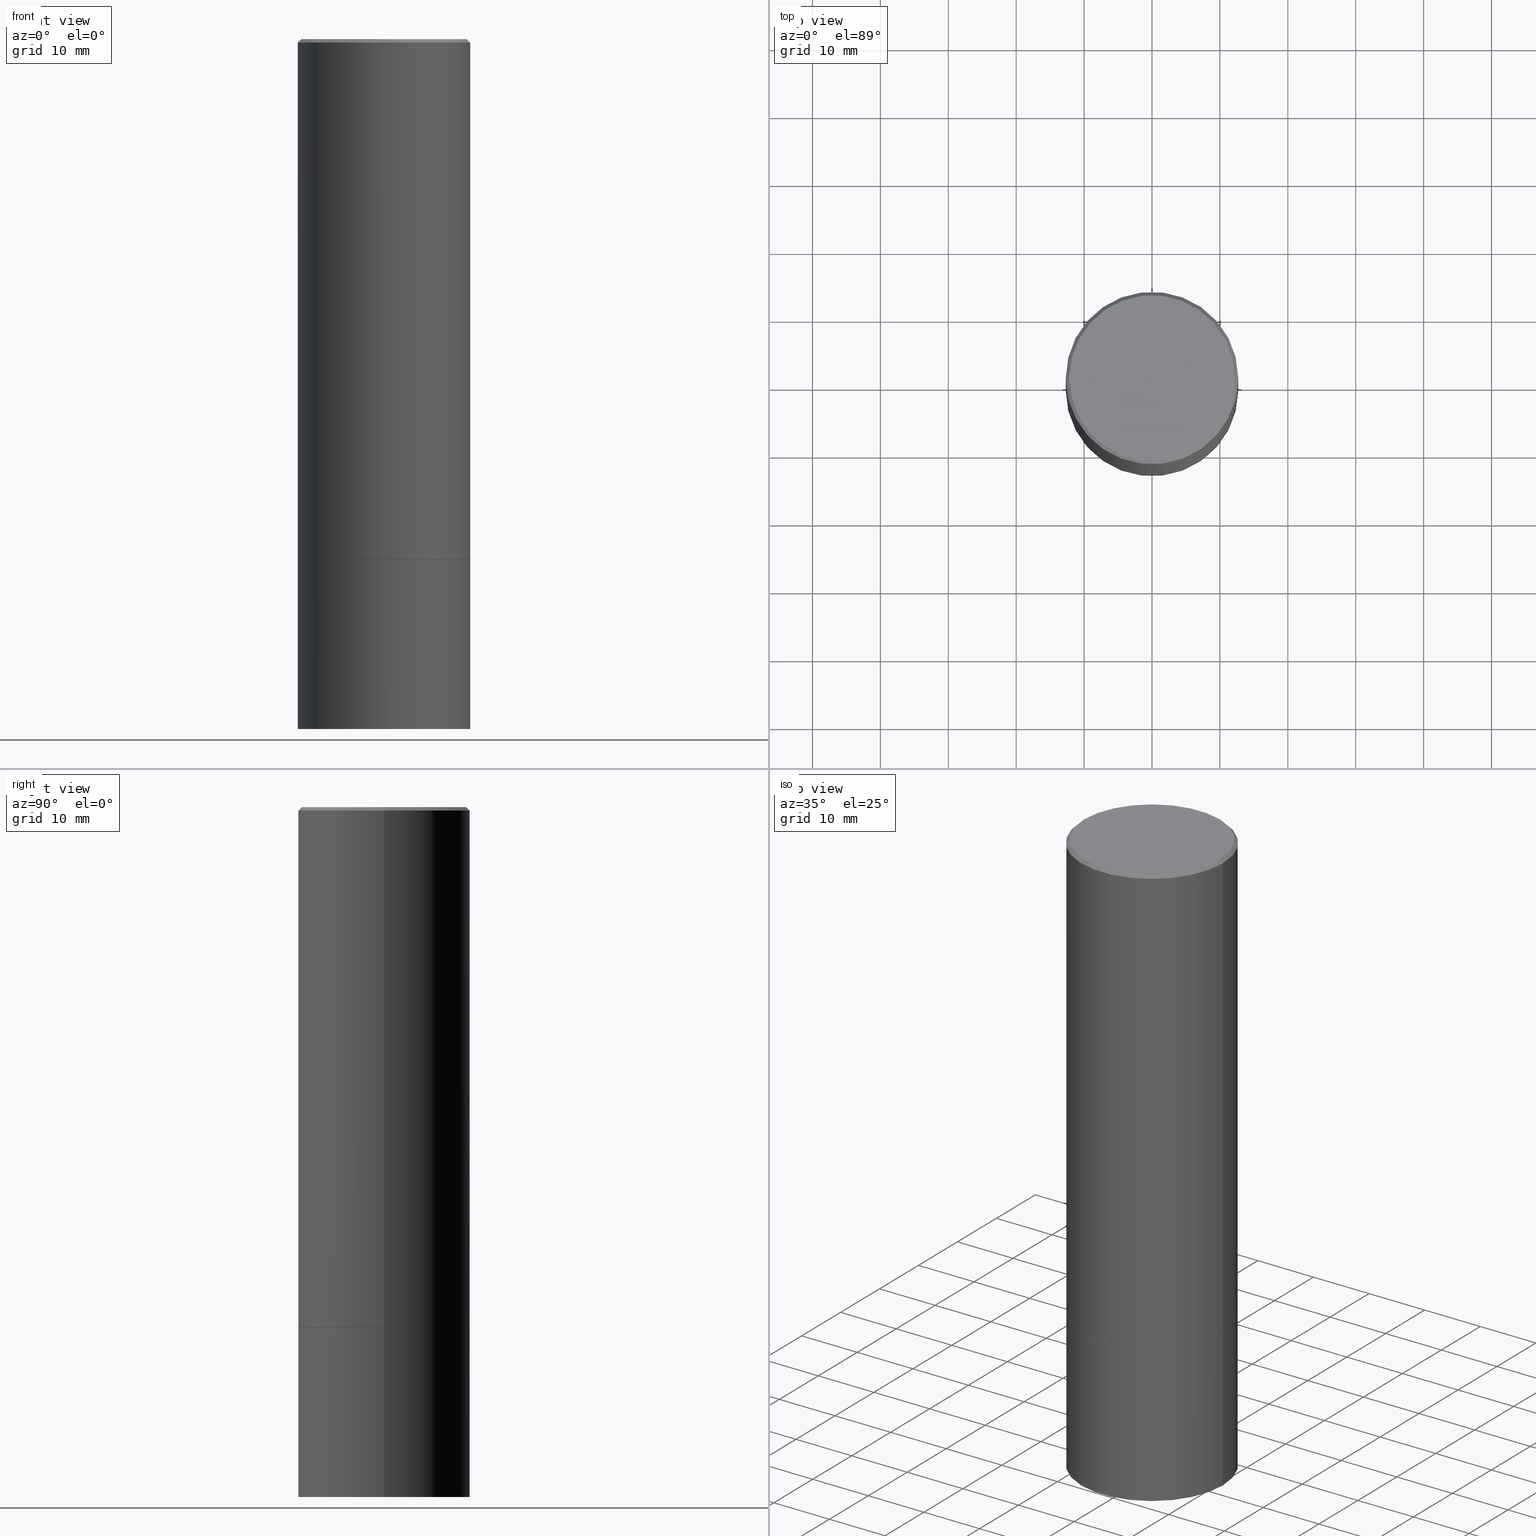
[diagram: canonical four-view strip — front | top / right | iso, engineering-drawing reading convention]
A machine part, canonical four-view strip (front | top / right | iso — engineering-drawing reading convention). The complete STEP part file that produces these views, byte-faithful:
ISO-10303-21;
HEADER;
FILE_DESCRIPTION (( 'STEP AP203' ),
    '1' );
FILE_NAME ('32670.STEP',
    '2022-04-27T15:46:49',
    ( '' ),
    ( '' ),
    'SwSTEP 2.0',
    'SolidWorks 2022',
    '' );
FILE_SCHEMA (( 'CONFIG_CONTROL_DESIGN' ));
ENDSEC;

DATA;
#1 = DIRECTION ( 'NONE',  ( -0.7071067811864267805, 7.493145998869918709E-15, 0.7071067811866682540 ) ) ;
#2 = APPROVAL_PERSON_ORGANIZATION ( #282, #192, #132 ) ;
#3 = EDGE_CURVE ( 'NONE', #346, #46, #5, .T. ) ;
#4 = CARTESIAN_POINT ( 'NONE',  ( 0.000000000000000000, 0.000000000000000000, 0.000000000000000000 ) ) ;
#5 = CIRCLE ( 'NONE', #216, 0.5000000000000000000 ) ;
#6 = FACE_OUTER_BOUND ( 'NONE', #355, .T. ) ;
#7 = FACE_OUTER_BOUND ( 'NONE', #214, .T. ) ;
#8 = FACE_OUTER_BOUND ( 'NONE', #257, .T. ) ;
#9 = ADVANCED_FACE ( 'NONE', ( #6 ), #153, .F. ) ;
#10 = AXIS2_PLACEMENT_3D ( 'NONE', #99, #33, #185 ) ;
#11 = FACE_OUTER_BOUND ( 'NONE', #82, .T. ) ;
#12 = DIRECTION ( 'NONE',  ( -2.445468806185136597E-29, 3.491481338843145583E-15, 1.000000000000000000 ) ) ;
#13 = APPLICATION_PROTOCOL_DEFINITION ( 'international standard', 'config_control_design', 1994, #195 ) ;
#14 = CC_DESIGN_APPROVAL ( #80, ( #276 ) ) ;
#15 = CC_DESIGN_PERSON_AND_ORGANIZATION_ASSIGNMENT ( #174, #199, ( #276 ) ) ;
#16 = SHAPE_DEFINITION_REPRESENTATION ( #170, #91 ) ;
#17 = DIRECTION ( 'NONE',  ( -0.7071067811865451302, 2.468850131082231817E-15, -0.7071067811865499042 ) ) ;
#18 = PRODUCT ( '32670', '32670', '', ( #130 ) ) ;
#19 = APPROVAL_STATUS ( 'not_yet_approved' ) ;
#20 = ORIENTED_EDGE ( 'NONE', *, *, #146, .T. ) ;
#21 = CARTESIAN_POINT ( 'NONE',  ( 7.374800278812518600E-29, -1.052926027354927709E-14, -3.015700000000000713 ) ) ;
#22 = LINE ( 'NONE', #172, #168 ) ;
#23 = VERTEX_POINT ( 'NONE', #57 ) ;
#24 = PERSON_AND_ORGANIZATION_ROLE ( 'design_supplier' ) ;
#25 = CC_DESIGN_SECURITY_CLASSIFICATION ( #283, ( #276 ) ) ;
#26 = DIRECTION ( 'NONE',  ( -2.445468806185136597E-29, 3.491481338843145583E-15, 1.000000000000000000 ) ) ;
#27 = DIRECTION ( 'NONE',  ( 2.438088387897960049E-29, -3.491481338843145188E-15, -1.000000000000000000 ) ) ;
#28 = FACE_OUTER_BOUND ( 'NONE', #88, .T. ) ;
#29 = DIRECTION ( 'NONE',  ( -0.9998476951563912696, 6.920964387254060733E-15, -0.01745240643727649296 ) ) ;
#30 = DIRECTION ( 'NONE',  ( 1.000000000000000000, -6.982962677686266711E-15, 0.000000000000000000 ) ) ;
#31 = DIRECTION ( 'NONE',  ( 1.000000000000000000, -6.982962677686265133E-15, 0.000000000000000000 ) ) ;
#32 = EDGE_CURVE ( 'NONE', #77, #46, #269, .T. ) ;
#33 = DIRECTION ( 'NONE',  ( 2.445468806185136597E-29, -3.491481338843145583E-15, -1.000000000000000000 ) ) ;
#34 = CARTESIAN_POINT ( 'NONE',  ( 4.890937612370302060E-31, -6.982962677686331052E-17, -0.02000000000000011491 ) ) ;
#35 = CARTESIAN_POINT ( 'NONE',  ( 7.374800278812518600E-29, -1.052926027354927709E-14, -3.015700000000000713 ) ) ;
#36 = EDGE_CURVE ( 'NONE', #165, #206, #84, .T. ) ;
#37 = APPROVAL_STATUS ( 'not_yet_approved' ) ;
#38 = CARTESIAN_POINT ( 'NONE',  ( 7.372354810006331876E-29, -1.052576879221043250E-14, -3.014700000000000379 ) ) ;
#39 = LOCAL_TIME ( 11, 46, 49.00000000000000000, #316 ) ;
#40 = APPROVAL_ROLE ( '' ) ;
#41 = AXIS2_PLACEMENT_3D ( 'NONE', #35, #373, #64 ) ;
#42 = EDGE_LOOP ( 'NONE', ( #249, #213, #20, #319 ) ) ;
#43 = EDGE_CURVE ( 'NONE', #374, #148, #267, .T. ) ;
#44 = CARTESIAN_POINT ( 'NONE',  ( 4.890937612370302060E-31, -6.982962677686331052E-17, -0.02000000000000011491 ) ) ;
#45 = APPLICATION_CONTEXT ( 'configuration controlled 3d designs of mechanical parts and assemblies' ) ;
#46 = VERTEX_POINT ( 'NONE', #147 ) ;
#47 = DIRECTION ( 'NONE',  ( 1.000000000000000000, -6.982962677686265922E-15, 4.876176775795935793E-29 ) ) ;
#48 = EDGE_LOOP ( 'NONE', ( #49, #52, #352 ) ) ;
#49 = ORIENTED_EDGE ( 'NONE', *, *, #32, .F. ) ;
#50 = ORIENTED_EDGE ( 'NONE', *, *, #102, .T. ) ;
#51 = ADVANCED_FACE ( 'NONE', ( #92 ), #238, .F. ) ;
#52 = ORIENTED_EDGE ( 'NONE', *, *, #369, .T. ) ;
#53 = AXIS2_PLACEMENT_3D ( 'NONE', #220, #337, #379 ) ;
#54 = CARTESIAN_POINT ( 'NONE',  ( 0.4999999999999996114, -3.500078625662626318E-15, -0.02000000000000011491 ) ) ;
#55 = CARTESIAN_POINT ( 'NONE',  ( 3.491481338843206719E-15, 0.4999999999999894529, -3.015700000000002046 ) ) ;
#56 = AXIS2_PLACEMENT_3D ( 'NONE', #236, #262, #359 ) ;
#57 = CARTESIAN_POINT ( 'NONE',  ( 0.5000000000000000000, -1.401725013105356586E-14, -3.014700000000000379 ) ) ;
#58 = DIRECTION ( 'NONE',  ( -2.445468806185136877E-29, 3.491481338843145188E-15, 1.000000000000000000 ) ) ;
#59 = CIRCLE ( 'NONE', #187, 0.5000000000000000000 ) ;
#60 = DIRECTION ( 'NONE',  ( -2.445468806185136597E-29, 3.491481338843145583E-15, 1.000000000000000000 ) ) ;
#61 = DIRECTION ( 'NONE',  ( 0.7071067811864267805, -2.468850131080992517E-15, 0.7071067811866682540 ) ) ;
#62 = CARTESIAN_POINT ( 'NONE',  ( 4.890937612370302060E-31, -6.982962677686331052E-17, -0.02000000000000011491 ) ) ;
#63 = LOCAL_TIME ( 11, 46, 49.00000000000000000, #128 ) ;
#64 = DIRECTION ( 'NONE',  ( 1.000000000000000000, -6.982962677686265133E-15, 0.000000000000000000 ) ) ;
#65 = EDGE_CURVE ( 'NONE', #288, #200, #179, .T. ) ;
#66 =( CONVERSION_BASED_UNIT ( 'INCH', #281 ) LENGTH_UNIT ( ) NAMED_UNIT ( #164 ) );
#67 = LINE ( 'NONE', #277, #162 ) ;
#68 =( LENGTH_UNIT ( ) NAMED_UNIT ( * ) SI_UNIT ( $, .METRE. ) );
#69 = LINE ( 'NONE', #219, #196 ) ;
#70 = PERSON_AND_ORGANIZATION ( #141, #376 ) ;
#71 = EDGE_CURVE ( 'NONE', #23, #148, #118, .T. ) ;
#72 = DATE_AND_TIME ( #378, #292 ) ;
#73 = AXIS2_PLACEMENT_3D ( 'NONE', #271, #333, #338 ) ;
#74 = EDGE_LOOP ( 'NONE', ( #173, #313, #294, #201 ) ) ;
#75 = VERTEX_POINT ( 'NONE', #330 ) ;
#76 = DIRECTION ( 'NONE',  ( 1.000000000000000000, -6.982962677686265133E-15, 0.000000000000000000 ) ) ;
#77 = VERTEX_POINT ( 'NONE', #178 ) ;
#78 = AXIS2_PLACEMENT_3D ( 'NONE', #98, #242, #274 ) ;
#79 = ORIENTED_EDGE ( 'NONE', *, *, #298, .F. ) ;
#80 = APPROVAL ( #111, 'UNSPECIFIED' ) ;
#81 = CYLINDRICAL_SURFACE ( 'NONE', #127, 0.4999999999999997780 ) ;
#82 = EDGE_LOOP ( 'NONE', ( #362, #371, #300, #386 ) ) ;
#83 = DIRECTION ( 'NONE',  ( 0.9998476951563912696, -6.920387862090559512E-15, -0.01745240643727649296 ) ) ;
#84 = LINE ( 'NONE', #212, #190 ) ;
#85 = AXIS2_PLACEMENT_3D ( 'NONE', #34, #189, #157 ) ;
#86 = CYLINDRICAL_SURFACE ( 'NONE', #331, 0.4999999999999997780 ) ;
#87 = ADVANCED_FACE ( 'NONE', ( #390 ), #86, .T. ) ;
#88 = EDGE_LOOP ( 'NONE', ( #197, #50, #135, #175 ) ) ;
#89 = CLOSED_SHELL ( 'NONE', ( #279, #345, #314, #245, #87, #217, #361, #51 ) ) ;
#90 = DIRECTION ( 'NONE',  ( -2.445468806185136597E-29, 3.491481338843145583E-15, 1.000000000000000000 ) ) ;
#91 = ADVANCED_BREP_SHAPE_REPRESENTATION ( '32670', ( #250, #389, #223 ), #381 ) ;
#92 = FACE_OUTER_BOUND ( 'NONE', #261, .T. ) ;
#93 = CC_DESIGN_APPROVAL ( #192, ( #221 ) ) ;
#94 = AXIS2_PLACEMENT_3D ( 'NONE', #129, #248, #188 ) ;
#95 = DIRECTION ( 'NONE',  ( 1.000000000000000000, -6.982962677686266711E-15, 0.000000000000000000 ) ) ;
#96 = AXIS2_PLACEMENT_3D ( 'NONE', #363, #299, #327 ) ;
#97 = APPROVAL ( #37, 'UNSPECIFIED' ) ;
#98 = CARTESIAN_POINT ( 'NONE',  ( 1.060388317724523486E-27, -1.513953485686851268E-13, -43.36135120769337448 ) ) ;
#99 = CARTESIAN_POINT ( 'NONE',  ( 1.060388317724523486E-27, -1.513953485686851268E-13, -43.36135120769337448 ) ) ;
#100 = FACE_OUTER_BOUND ( 'NONE', #202, .T. ) ;
#101 = CARTESIAN_POINT ( 'NONE',  ( -0.5000000000000000000, -1.745085530693144802E-15, -3.014700000000000379 ) ) ;
#102 = EDGE_CURVE ( 'NONE', #46, #288, #237, .T. ) ;
#103 = CARTESIAN_POINT ( 'NONE',  ( 0.000000000000000000, 0.000000000000000000, 0.000000000000000000 ) ) ;
#104 = VERTEX_POINT ( 'NONE', #324 ) ;
#105 = SECURITY_CLASSIFICATION_LEVEL ( 'unclassified' ) ;
#106 = CALENDAR_DATE ( 2022, 27, 4 ) ;
#107 = EDGE_CURVE ( 'NONE', #200, #288, #198, .T. ) ;
#108 = ORIENTED_EDGE ( 'NONE', *, *, #177, .F. ) ;
#109 = UNCERTAINTY_MEASURE_WITH_UNIT (LENGTH_MEASURE( 1.000000000000000082E-05 ), #66, 'distance_accuracy_value', 'NONE');
#110 = AXIS2_PLACEMENT_3D ( 'NONE', #38, #191, #304 ) ;
#111 = APPROVAL_STATUS ( 'not_yet_approved' ) ;
#112 = CIRCLE ( 'NONE', #85, 0.4999999999999996114 ) ;
#113 = FACE_OUTER_BOUND ( 'NONE', #143, .T. ) ;
#114 = COORDINATED_UNIVERSAL_TIME_OFFSET ( 5, 0, .BEHIND. ) ;
#115 = DIRECTION ( 'NONE',  ( 0.7071067811865451302, -7.319954787623248157E-15, -0.7071067811865499042 ) ) ;
#116 = DIRECTION ( 'NONE',  ( -1.000000000000000000, 6.982962677686265922E-15, -4.876176775795935793E-29 ) ) ;
#117 = ADVANCED_FACE ( 'NONE', ( #28 ), #303, .T. ) ;
#118 = LINE ( 'NONE', #295, #145 ) ;
#119 = DIRECTION ( 'NONE',  ( -2.445468806185136597E-29, 3.491481338843145583E-15, 1.000000000000000000 ) ) ;
#120 = EDGE_CURVE ( 'NONE', #104, #374, #297, .T. ) ;
#121 = ORIENTED_EDGE ( 'NONE', *, *, #36, .F. ) ;
#122 = CONICAL_SURFACE ( 'NONE', #78, 2255.510300424507022, 1.553343034274960344 ) ;
#123 = CARTESIAN_POINT ( 'NONE',  ( -0.4999999999999996114, 3.421651712066267296E-15, -0.02000000000000011491 ) ) ;
#124 = FACE_OUTER_BOUND ( 'NONE', #48, .T. ) ;
#125 = DIRECTION ( 'NONE',  ( 1.000000000000000000, -6.982962677686265133E-15, 0.000000000000000000 ) ) ;
#126 = DIRECTION ( 'NONE',  ( 1.000000000000000000, -6.982962677686266711E-15, 4.876176775795935793E-29 ) ) ;
#127 = AXIS2_PLACEMENT_3D ( 'NONE', #285, #26, #315 ) ;
#128 = COORDINATED_UNIVERSAL_TIME_OFFSET ( 5, 0, .BEHIND. ) ;
#129 = CARTESIAN_POINT ( 'NONE',  ( -3.131554243005659264E-46, 4.471029511141341874E-32, 1.280553747030123384E-17 ) ) ;
#130 = MECHANICAL_CONTEXT ( 'NONE', #195, 'mechanical' ) ;
#131 = AXIS2_PLACEMENT_3D ( 'NONE', #62, #154, #365 ) ;
#132 = APPROVAL_ROLE ( '' ) ;
#133 = DIRECTION ( 'NONE',  ( -2.445468806185136597E-29, 3.491481338843145583E-15, 1.000000000000000000 ) ) ;
#134 = CC_DESIGN_PERSON_AND_ORGANIZATION_ASSIGNMENT ( #171, #254, ( #18 ) ) ;
#135 = ORIENTED_EDGE ( 'NONE', *, *, #107, .F. ) ;
#136 = EDGE_LOOP ( 'NONE', ( #181, #228, #251 ) ) ;
#137 = COORDINATED_UNIVERSAL_TIME_OFFSET ( 5, 0, .BEHIND. ) ;
#138 = ORIENTED_EDGE ( 'NONE', *, *, #182, .F. ) ;
#139 = PERSON_AND_ORGANIZATION ( #141, #376 ) ;
#140 = CONICAL_SURFACE ( 'NONE', #131, 0.4999999999999996114, 0.7853981633974449483 ) ;
#141 = PERSON ( 'UNSPECIFIED', 'UNSPECIFIED', 'UNSPECIFIED', ('UNSPECIFIED'), ('UNSPECIFIED'), ('UNSPECIFIED') ) ;
#142 = DIRECTION ( 'NONE',  ( 1.000000000000000000, -6.982962677686266711E-15, 0.000000000000000000 ) ) ;
#143 = EDGE_LOOP ( 'NONE', ( #286, #382 ) ) ;
#144 = AXIS2_PLACEMENT_3D ( 'NONE', #55, #27, #116 ) ;
#145 = VECTOR ( 'NONE', #266, 39.37007874015748143 ) ;
#146 = EDGE_CURVE ( 'NONE', #104, #75, #370, .T. ) ;
#147 = CARTESIAN_POINT ( 'NONE',  ( -0.5000000000000026645, -1.047444401652943162E-14, -4.000000000000000000 ) ) ;
#148 = VERTEX_POINT ( 'NONE', #193 ) ;
#149 = AXIS2_PLACEMENT_3D ( 'NONE', #21, #260, #76 ) ;
#150 = PRODUCT_RELATED_PRODUCT_CATEGORY ( 'detail', '', ( #18 ) ) ;
#151 = CARTESIAN_POINT ( 'NONE',  ( 7.374800278812517479E-29, -1.052926027354927551E-14, -3.015700000000000269 ) ) ;
#152 = CC_DESIGN_PERSON_AND_ORGANIZATION_ASSIGNMENT ( #253, #224, ( #221 ) ) ;
#153 = PLANE ( 'NONE',  #144 ) ;
#154 = DIRECTION ( 'NONE',  ( 2.445468806185136597E-29, -3.491481338843145583E-15, -1.000000000000000000 ) ) ;
#155 = CONICAL_SURFACE ( 'NONE', #53, 0.4999999999999996114, 0.7853981633974449483 ) ;
#156 = DIRECTION ( 'NONE',  ( -2.445468806185136597E-29, 3.491481338843145583E-15, 1.000000000000000000 ) ) ;
#157 = DIRECTION ( 'NONE',  ( 1.000000000000000000, -6.982962677686266711E-15, 0.000000000000000000 ) ) ;
#158 = ADVANCED_FACE ( 'NONE', ( #334 ), #343, .F. ) ;
#159 = CARTESIAN_POINT ( 'NONE',  ( 0.000000000000000000, 0.000000000000000000, 0.000000000000000000 ) ) ;
#160 = CARTESIAN_POINT ( 'NONE',  ( 0.5000000000000000000, -3.491481338843133355E-15, 2.438088387897967896E-29 ) ) ;
#161 = CALENDAR_DATE ( 2022, 27, 4 ) ;
#162 = VECTOR ( 'NONE', #272, 39.37007874015748143 ) ;
#163 =( NAMED_UNIT ( * ) SI_UNIT ( $, .STERADIAN. ) SOLID_ANGLE_UNIT ( ) );
#164 = DIMENSIONAL_EXPONENTS ( 1.000000000000000000, 0.000000000000000000, 0.000000000000000000, 0.000000000000000000, 0.000000000000000000, 0.000000000000000000, 0.000000000000000000 ) ;
#165 = VERTEX_POINT ( 'NONE', #244 ) ;
#166 = DESIGN_CONTEXT ( 'detailed design', #45, 'design' ) ;
#167 = DIRECTION ( 'NONE',  ( 1.000000000000000000, -6.982962677686266711E-15, 0.000000000000000000 ) ) ;
#168 = VECTOR ( 'NONE', #83, 39.37007874015748143 ) ;
#169 = APPROVAL_DATE_TIME ( #347, #192 ) ;
#170 = PRODUCT_DEFINITION_SHAPE ( 'NONE', 'NONE',  #221 ) ;
#171 = PERSON_AND_ORGANIZATION ( #141, #376 ) ;
#172 = CARTESIAN_POINT ( 'NONE',  ( 7.335353718403037072E-18, -1.393545333864001155E-14, -3.991272467535894819 ) ) ;
#173 = ORIENTED_EDGE ( 'NONE', *, *, #252, .T. ) ;
#174 = PERSON_AND_ORGANIZATION ( #141, #376 ) ;
#175 = ORIENTED_EDGE ( 'NONE', *, *, #241, .F. ) ;
#176 = CONICAL_SURFACE ( 'NONE', #312, 0.4989999999999999991, 0.7853981633972775267 ) ;
#177 = EDGE_CURVE ( 'NONE', #206, #75, #67, .T. ) ;
#178 = CARTESIAN_POINT ( 'NONE',  ( 9.755410066220353201E-29, -1.394278869235831520E-14, -3.991272467535894819 ) ) ;
#179 = CIRCLE ( 'NONE', #243, 0.5000000000000000000 ) ;
#180 = DIRECTION ( 'NONE',  ( -2.445468806185136597E-29, 3.491481338843145583E-15, 1.000000000000000000 ) ) ;
#181 = ORIENTED_EDGE ( 'NONE', *, *, #369, .F. ) ;
#182 = EDGE_CURVE ( 'NONE', #231, #23, #69, .T. ) ;
#183 = CARTESIAN_POINT ( 'NONE',  ( 7.374800278812517479E-29, -1.052926027354927551E-14, -3.015700000000000269 ) ) ;
#184 = CARTESIAN_POINT ( 'NONE',  ( 9.781875224740546387E-29, -1.396592535537258233E-14, -4.000000000000000000 ) ) ;
#185 = DIRECTION ( 'NONE',  ( -1.000000000000000000, 6.982962677686266711E-15, 0.000000000000000000 ) ) ;
#186 = EDGE_CURVE ( 'NONE', #165, #231, #384, .T. ) ;
#187 = AXIS2_PLACEMENT_3D ( 'NONE', #263, #133, #387 ) ;
#188 = DIRECTION ( 'NONE',  ( 1.000000000000000000, -6.982962677686266711E-15, 4.876036955247133327E-29 ) ) ;
#189 = DIRECTION ( 'NONE',  ( -2.445468806185136597E-29, 3.491481338843145583E-15, 1.000000000000000000 ) ) ;
#190 = VECTOR ( 'NONE', #1, 39.37007874015748143 ) ;
#191 = DIRECTION ( 'NONE',  ( -2.445468806185136597E-29, 3.491481338843145583E-15, 1.000000000000000000 ) ) ;
#192 = APPROVAL ( #19, 'UNSPECIFIED' ) ;
#193 = CARTESIAN_POINT ( 'NONE',  ( 0.4999999999999996114, -3.500078625662626318E-15, -0.02000000000000011491 ) ) ;
#194 = APPROVAL_PERSON_ORGANIZATION ( #70, #97, #40 ) ;
#195 = APPLICATION_CONTEXT ( 'configuration controlled 3d designs of mechanical parts and assemblies' ) ;
#196 = VECTOR ( 'NONE', #61, 39.37007874015748143 ) ;
#197 = ORIENTED_EDGE ( 'NONE', *, *, #3, .T. ) ;
#198 = CIRCLE ( 'NONE', #342, 0.5000000000000000000 ) ;
#199 = PERSON_AND_ORGANIZATION_ROLE ( 'creator' ) ;
#200 = VERTEX_POINT ( 'NONE', #336 ) ;
#201 = ORIENTED_EDGE ( 'NONE', *, *, #71, .F. ) ;
#202 = EDGE_LOOP ( 'NONE', ( #289, #256, #284, #317 ) ) ;
#203 = APPLICATION_PROTOCOL_DEFINITION ( 'international standard', 'config_control_design', 1994, #45 ) ;
#204 = ORIENTED_EDGE ( 'NONE', *, *, #211, .T. ) ;
#205 = CARTESIAN_POINT ( 'NONE',  ( 0.5000000000000026645, -1.739617435425836547E-14, -4.000000000000000000 ) ) ;
#206 = VERTEX_POINT ( 'NONE', #101 ) ;
#207 = CARTESIAN_POINT ( 'NONE',  ( 0.4799999999999995937, -3.396558832296479338E-15, 1.280553747032483033E-17 ) ) ;
#208 = ORIENTED_EDGE ( 'NONE', *, *, #225, .T. ) ;
#209 = ORIENTED_EDGE ( 'NONE', *, *, #71, .T. ) ;
#210 = CARTESIAN_POINT ( 'NONE',  ( -0.5000000000000000000, 3.552713678800500929E-15, -2.459467545127452891E-29 ) ) ;
#211 = EDGE_CURVE ( 'NONE', #374, #104, #264, .T. ) ;
#212 = CARTESIAN_POINT ( 'NONE',  ( -0.4989999999999999991, -6.983652022106376377E-15, -3.015700000000000713 ) ) ;
#213 = ORIENTED_EDGE ( 'NONE', *, *, #120, .F. ) ;
#214 = EDGE_LOOP ( 'NONE', ( #233, #326, #234, #138 ) ) ;
#215 = CARTESIAN_POINT ( 'NONE',  ( 7.374800278812518600E-29, -1.052926027354927709E-14, -3.015700000000000713 ) ) ;
#216 = AXIS2_PLACEMENT_3D ( 'NONE', #184, #180, #322 ) ;
#217 = ADVANCED_FACE ( 'NONE', ( #8 ), #265, .T. ) ;
#218 = DIRECTION ( 'NONE',  ( -2.445468806185136597E-29, 3.491481338843145583E-15, 1.000000000000000000 ) ) ;
#219 = CARTESIAN_POINT ( 'NONE',  ( 0.4989999999999999991, -1.401375864971472285E-14, -3.015700000000000713 ) ) ;
#220 = CARTESIAN_POINT ( 'NONE',  ( 4.890937612370302060E-31, -6.982962677686331052E-17, -0.02000000000000011491 ) ) ;
#221 = PRODUCT_DEFINITION ( 'UNKNOWN', '', #276, #166 ) ;
#222 = DIRECTION ( 'NONE',  ( -2.445468806185136877E-29, 3.491481338843145188E-15, 1.000000000000000000 ) ) ;
#223 = AXIS2_PLACEMENT_3D ( 'NONE', #103, #344, #377 ) ;
#224 = PERSON_AND_ORGANIZATION_ROLE ( 'creator' ) ;
#225 = EDGE_CURVE ( 'NONE', #206, #23, #388, .T. ) ;
#226 = DATE_AND_TIME ( #232, #329 ) ;
#227 = CIRCLE ( 'NONE', #358, 0.4999999999999996114 ) ;
#228 = ORIENTED_EDGE ( 'NONE', *, *, #32, .T. ) ;
#229 = DATE_TIME_ROLE ( 'creation_date' ) ;
#230 = PLANE ( 'NONE',  #335 ) ;
#231 = VERTEX_POINT ( 'NONE', #247 ) ;
#232 = CALENDAR_DATE ( 2022, 27, 4 ) ;
#233 = ORIENTED_EDGE ( 'NONE', *, *, #356, .T. ) ;
#234 = ORIENTED_EDGE ( 'NONE', *, *, #252, .F. ) ;
#235 = AXIS2_PLACEMENT_3D ( 'NONE', #159, #12, #126 ) ;
#236 = CARTESIAN_POINT ( 'NONE',  ( 0.000000000000000000, 0.000000000000000000, 0.000000000000000000 ) ) ;
#237 = LINE ( 'NONE', #210, #367 ) ;
#238 = PLANE ( 'NONE',  #96 ) ;
#239 = VECTOR ( 'NONE', #222, 39.37007874015748143 ) ;
#240 = FACE_OUTER_BOUND ( 'NONE', #42, .T. ) ;
#241 = EDGE_CURVE ( 'NONE', #346, #200, #372, .T. ) ;
#242 = DIRECTION ( 'NONE',  ( 2.445468806185136597E-29, -3.491481338843145583E-15, -1.000000000000000000 ) ) ;
#243 = AXIS2_PLACEMENT_3D ( 'NONE', #151, #90, #142 ) ;
#244 = CARTESIAN_POINT ( 'NONE',  ( -0.4989999999999999991, -6.978353567758153975E-15, -3.015700000000000713 ) ) ;
#245 = ADVANCED_FACE ( 'NONE', ( #240 ), #140, .T. ) ;
#246 = CIRCLE ( 'NONE', #301, 0.5000000000000000000 ) ;
#247 = CARTESIAN_POINT ( 'NONE',  ( 0.4989999999999999991, -1.401375864971472285E-14, -3.015700000000000713 ) ) ;
#248 = DIRECTION ( 'NONE',  ( -2.445468806185136597E-29, 3.491481338843145583E-15, 1.000000000000000000 ) ) ;
#249 = ORIENTED_EDGE ( 'NONE', *, *, #43, .F. ) ;
#250 = MANIFOLD_SOLID_BREP ( 'Body-Move/Copy2[1]', #306 ) ;
#251 = ORIENTED_EDGE ( 'NONE', *, *, #3, .F. ) ;
#252 = EDGE_CURVE ( 'NONE', #23, #206, #246, .T. ) ;
#253 = PERSON_AND_ORGANIZATION ( #141, #376 ) ;
#254 = PERSON_AND_ORGANIZATION_ROLE ( 'design_owner' ) ;
#255 = AXIS2_PLACEMENT_3D ( 'NONE', #305, #218, #31 ) ;
#256 = ORIENTED_EDGE ( 'NONE', *, *, #43, .T. ) ;
#257 = EDGE_LOOP ( 'NONE', ( #121, #348, #302, #321 ) ) ;
#258 = CALENDAR_DATE ( 2022, 27, 4 ) ;
#259 = CC_DESIGN_PERSON_AND_ORGANIZATION_ASSIGNMENT ( #139, #383, ( #283 ) ) ;
#260 = DIRECTION ( 'NONE',  ( -2.445468806185136597E-29, 3.491481338843145583E-15, 1.000000000000000000 ) ) ;
#261 = EDGE_LOOP ( 'NONE', ( #291, #204 ) ) ;
#262 = DIRECTION ( 'NONE',  ( -2.445468806185136597E-29, 3.491481338843145583E-15, 1.000000000000000000 ) ) ;
#263 = CARTESIAN_POINT ( 'NONE',  ( 9.781875224740546387E-29, -1.396592535537258233E-14, -4.000000000000000000 ) ) ;
#264 = CIRCLE ( 'NONE', #94, 0.4799999999999995937 ) ;
#265 = CONICAL_SURFACE ( 'NONE', #255, 0.4989999999999999991, 0.7853981633972775267 ) ;
#266 = DIRECTION ( 'NONE',  ( -2.445468806185136877E-29, 3.491481338843145188E-15, 1.000000000000000000 ) ) ;
#267 = LINE ( 'NONE', #54, #296 ) ;
#268 = CARTESIAN_POINT ( 'NONE',  ( -7.335353718207824813E-18, -1.393545333864001155E-14, -3.991272467535894819 ) ) ;
#269 = LINE ( 'NONE', #268, #332 ) ;
#270 = DIRECTION ( 'NONE',  ( -2.445468806185136597E-29, 3.491481338843145583E-15, 1.000000000000000000 ) ) ;
#271 = CARTESIAN_POINT ( 'NONE',  ( -3.131554243005659264E-46, 4.471029511141341874E-32, 1.280553747030123384E-17 ) ) ;
#272 = DIRECTION ( 'NONE',  ( -2.445468806185136877E-29, 3.491481338843145188E-15, 1.000000000000000000 ) ) ;
#273 = CC_DESIGN_DATE_AND_TIME_ASSIGNMENT ( #311, #229, ( #221 ) ) ;
#274 = DIRECTION ( 'NONE',  ( -1.000000000000000000, 6.982962677686266711E-15, 0.000000000000000000 ) ) ;
#275 = DATE_AND_TIME ( #161, #63 ) ;
#276 = PRODUCT_DEFINITION_FORMATION_WITH_SPECIFIED_SOURCE ( 'ANY', '', #18, .NOT_KNOWN. ) ;
#277 = CARTESIAN_POINT ( 'NONE',  ( -0.4999999999999997780, 3.552713678800499352E-15, -2.459467545127452050E-29 ) ) ;
#278 = APPROVAL_DATE_TIME ( #275, #97 ) ;
#279 = ADVANCED_FACE ( 'NONE', ( #7 ), #176, .T. ) ;
#280 = EDGE_LOOP ( 'NONE', ( #108, #208, #209, #79 ) ) ;
#281 = LENGTH_MEASURE_WITH_UNIT ( LENGTH_MEASURE( 0.02539999999999999897 ), #68 );
#282 = PERSON_AND_ORGANIZATION ( #141, #376 ) ;
#283 = SECURITY_CLASSIFICATION ( '', '', #105 ) ;
#284 = ORIENTED_EDGE ( 'NONE', *, *, #323, .T. ) ;
#285 = CARTESIAN_POINT ( 'NONE',  ( 0.000000000000000000, 0.000000000000000000, 0.000000000000000000 ) ) ;
#286 = ORIENTED_EDGE ( 'NONE', *, *, #356, .F. ) ;
#287 = ADVANCED_FACE ( 'NONE', ( #124 ), #122, .F. ) ;
#288 = VERTEX_POINT ( 'NONE', #368 ) ;
#289 = ORIENTED_EDGE ( 'NONE', *, *, #211, .F. ) ;
#290 = PERSON_AND_ORGANIZATION ( #141, #376 ) ;
#291 = ORIENTED_EDGE ( 'NONE', *, *, #120, .T. ) ;
#292 = LOCAL_TIME ( 11, 46, 49.00000000000000000, #351 ) ;
#293 = DIRECTION ( 'NONE',  ( -2.445468806185136597E-29, 3.491481338843145583E-15, 1.000000000000000000 ) ) ;
#294 = ORIENTED_EDGE ( 'NONE', *, *, #323, .F. ) ;
#295 = CARTESIAN_POINT ( 'NONE',  ( 0.4999999999999997780, -3.491481338843131778E-15, 2.438088387897966775E-29 ) ) ;
#296 = VECTOR ( 'NONE', #115, 39.37007874015748143 ) ;
#297 = CIRCLE ( 'NONE', #73, 0.4799999999999995937 ) ;
#298 = EDGE_CURVE ( 'NONE', #75, #148, #112, .T. ) ;
#299 = DIRECTION ( 'NONE',  ( 2.438088387897960049E-29, -3.491481338843145188E-15, -1.000000000000000000 ) ) ;
#300 = ORIENTED_EDGE ( 'NONE', *, *, #241, .T. ) ;
#301 = AXIS2_PLACEMENT_3D ( 'NONE', #308, #270, #95 ) ;
#302 = ORIENTED_EDGE ( 'NONE', *, *, #182, .T. ) ;
#303 = CYLINDRICAL_SURFACE ( 'NONE', #56, 0.5000000000000000000 ) ;
#304 = DIRECTION ( 'NONE',  ( 1.000000000000000000, -6.982962677686266711E-15, 0.000000000000000000 ) ) ;
#305 = CARTESIAN_POINT ( 'NONE',  ( 7.374800278812518600E-29, -1.052926027354927709E-14, -3.015700000000000713 ) ) ;
#306 = CLOSED_SHELL ( 'NONE', ( #117, #287, #158, #310, #9 ) ) ;
#307 = CYLINDRICAL_SURFACE ( 'NONE', #235, 0.5000000000000000000 ) ;
#308 = CARTESIAN_POINT ( 'NONE',  ( 7.372354810006331876E-29, -1.052576879221043250E-14, -3.014700000000000379 ) ) ;
#309 = LOCAL_TIME ( 11, 46, 49.00000000000000000, #137 ) ;
#310 = ADVANCED_FACE ( 'NONE', ( #11 ), #307, .T. ) ;
#311 = DATE_AND_TIME ( #258, #39 ) ;
#312 = AXIS2_PLACEMENT_3D ( 'NONE', #215, #156, #125 ) ;
#313 = ORIENTED_EDGE ( 'NONE', *, *, #177, .T. ) ;
#314 = ADVANCED_FACE ( 'NONE', ( #100 ), #155, .T. ) ;
#315 = DIRECTION ( 'NONE',  ( 1.000000000000000000, -6.982962677686266711E-15, 4.876176775795935793E-29 ) ) ;
#316 = COORDINATED_UNIVERSAL_TIME_OFFSET ( 5, 0, .BEHIND. ) ;
#317 = ORIENTED_EDGE ( 'NONE', *, *, #146, .F. ) ;
#318 = CARTESIAN_POINT ( 'NONE',  ( 7.374800278812517479E-29, -1.052926027354927551E-14, -3.015700000000000269 ) ) ;
#319 = ORIENTED_EDGE ( 'NONE', *, *, #298, .T. ) ;
#320 = APPROVAL_DATE_TIME ( #72, #80 ) ;
#321 = ORIENTED_EDGE ( 'NONE', *, *, #225, .F. ) ;
#322 = DIRECTION ( 'NONE',  ( 1.000000000000000000, -6.982962677686266711E-15, 0.000000000000000000 ) ) ;
#323 = EDGE_CURVE ( 'NONE', #148, #75, #227, .T. ) ;
#324 = CARTESIAN_POINT ( 'NONE',  ( -0.4799999999999995937, 3.386736898677836436E-15, 1.280553747027767124E-17 ) ) ;
#325 = ORIENTED_EDGE ( 'NONE', *, *, #107, .T. ) ;
#326 = ORIENTED_EDGE ( 'NONE', *, *, #36, .T. ) ;
#327 = DIRECTION ( 'NONE',  ( -1.000000000000000000, 6.982962677686265922E-15, -4.876176775795935793E-29 ) ) ;
#328 = CC_DESIGN_PERSON_AND_ORGANIZATION_ASSIGNMENT ( #290, #24, ( #276 ) ) ;
#329 = LOCAL_TIME ( 11, 46, 49.00000000000000000, #114 ) ;
#330 = CARTESIAN_POINT ( 'NONE',  ( -0.4999999999999996114, 3.421651712066267296E-15, -0.02000000000000011491 ) ) ;
#331 = AXIS2_PLACEMENT_3D ( 'NONE', #4, #119, #357 ) ;
#332 = VECTOR ( 'NONE', #29, 39.37007874015748143 ) ;
#333 = DIRECTION ( 'NONE',  ( -2.445468806185136597E-29, 3.491481338843145583E-15, 1.000000000000000000 ) ) ;
#334 = FACE_OUTER_BOUND ( 'NONE', #136, .T. ) ;
#335 = AXIS2_PLACEMENT_3D ( 'NONE', #318, #353, #47 ) ;
#336 = CARTESIAN_POINT ( 'NONE',  ( 0.5000000000000000000, -1.402074161239240887E-14, -3.015700000000000269 ) ) ;
#337 = DIRECTION ( 'NONE',  ( 2.445468806185136597E-29, -3.491481338843145583E-15, -1.000000000000000000 ) ) ;
#338 = DIRECTION ( 'NONE',  ( 1.000000000000000000, -6.982962677686266711E-15, 4.876036955247133327E-29 ) ) ;
#339 = CIRCLE ( 'NONE', #149, 0.4989999999999999991 ) ;
#340 = DATE_TIME_ROLE ( 'classification_date' ) ;
#341 = APPROVAL_ROLE ( '' ) ;
#342 = AXIS2_PLACEMENT_3D ( 'NONE', #183, #60, #30 ) ;
#343 = CONICAL_SURFACE ( 'NONE', #10, 2255.510300424507022, 1.553343034274960344 ) ;
#344 = DIRECTION ( 'NONE',  ( 0.000000000000000000, 0.000000000000000000, 1.000000000000000000 ) ) ;
#345 = ADVANCED_FACE ( 'NONE', ( #350 ), #81, .T. ) ;
#346 = VERTEX_POINT ( 'NONE', #205 ) ;
#347 = DATE_AND_TIME ( #106, #309 ) ;
#348 = ORIENTED_EDGE ( 'NONE', *, *, #186, .T. ) ;
#349 = APPROVAL_PERSON_ORGANIZATION ( #380, #80, #341 ) ;
#350 = FACE_OUTER_BOUND ( 'NONE', #74, .T. ) ;
#351 = COORDINATED_UNIVERSAL_TIME_OFFSET ( 5, 0, .BEHIND. ) ;
#352 = ORIENTED_EDGE ( 'NONE', *, *, #385, .F. ) ;
#353 = DIRECTION ( 'NONE',  ( -2.438088387897960049E-29, 3.491481338843145188E-15, 1.000000000000000000 ) ) ;
#354 = ORIENTED_EDGE ( 'NONE', *, *, #65, .T. ) ;
#355 = EDGE_LOOP ( 'NONE', ( #325, #354 ) ) ;
#356 = EDGE_CURVE ( 'NONE', #231, #165, #339, .T. ) ;
#357 = DIRECTION ( 'NONE',  ( 1.000000000000000000, -6.982962677686266711E-15, 4.876176775795935793E-29 ) ) ;
#358 = AXIS2_PLACEMENT_3D ( 'NONE', #44, #293, #167 ) ;
#359 = DIRECTION ( 'NONE',  ( 1.000000000000000000, -6.982962677686266711E-15, 4.876176775795935793E-29 ) ) ;
#360 = CC_DESIGN_DATE_AND_TIME_ASSIGNMENT ( #226, #340, ( #283 ) ) ;
#361 = ADVANCED_FACE ( 'NONE', ( #113 ), #230, .F. ) ;
#362 = ORIENTED_EDGE ( 'NONE', *, *, #102, .F. ) ;
#363 = CARTESIAN_POINT ( 'NONE',  ( 3.351822085289404787E-15, 0.4799999999999995937, -1.669508273909557867E-15 ) ) ;
#364 = CC_DESIGN_APPROVAL ( #97, ( #283 ) ) ;
#365 = DIRECTION ( 'NONE',  ( -1.000000000000000000, 6.982962677686266711E-15, 0.000000000000000000 ) ) ;
#366 = VECTOR ( 'NONE', #17, 39.37007874015748143 ) ;
#367 = VECTOR ( 'NONE', #58, 39.37007874015748143 ) ;
#368 = CARTESIAN_POINT ( 'NONE',  ( -0.5000000000000000000, -8.694879135660427991E-15, -3.015700000000000269 ) ) ;
#369 = EDGE_CURVE ( 'NONE', #77, #346, #22, .T. ) ;
#370 = LINE ( 'NONE', #123, #366 ) ;
#371 = ORIENTED_EDGE ( 'NONE', *, *, #385, .T. ) ;
#372 = LINE ( 'NONE', #160, #239 ) ;
#373 = DIRECTION ( 'NONE',  ( -2.445468806185136597E-29, 3.491481338843145583E-15, 1.000000000000000000 ) ) ;
#374 = VERTEX_POINT ( 'NONE', #207 ) ;
#375 =( NAMED_UNIT ( * ) PLANE_ANGLE_UNIT ( ) SI_UNIT ( $, .RADIAN. ) );
#376 = ORGANIZATION ( 'UNSPECIFIED', 'UNSPECIFIED', '' ) ;
#377 = DIRECTION ( 'NONE',  ( 1.000000000000000000, 0.000000000000000000, 0.000000000000000000 ) ) ;
#378 = CALENDAR_DATE ( 2022, 27, 4 ) ;
#379 = DIRECTION ( 'NONE',  ( -1.000000000000000000, 6.982962677686266711E-15, 0.000000000000000000 ) ) ;
#380 = PERSON_AND_ORGANIZATION ( #141, #376 ) ;
#381 =( GEOMETRIC_REPRESENTATION_CONTEXT ( 3 ) GLOBAL_UNCERTAINTY_ASSIGNED_CONTEXT ( ( #109 ) ) GLOBAL_UNIT_ASSIGNED_CONTEXT ( ( #66, #375, #163 ) ) REPRESENTATION_CONTEXT ( 'NONE', 'WORKASPACE' ) );
#382 = ORIENTED_EDGE ( 'NONE', *, *, #186, .F. ) ;
#383 = PERSON_AND_ORGANIZATION_ROLE ( 'classification_officer' ) ;
#384 = CIRCLE ( 'NONE', #41, 0.4989999999999999991 ) ;
#385 = EDGE_CURVE ( 'NONE', #46, #346, #59, .T. ) ;
#386 = ORIENTED_EDGE ( 'NONE', *, *, #65, .F. ) ;
#387 = DIRECTION ( 'NONE',  ( 1.000000000000000000, -6.982962677686266711E-15, 0.000000000000000000 ) ) ;
#388 = CIRCLE ( 'NONE', #110, 0.5000000000000000000 ) ;
#389 = MANIFOLD_SOLID_BREP ( 'Body-Move/Copy2[2]', #89 ) ;
#390 = FACE_OUTER_BOUND ( 'NONE', #280, .T. ) ;
ENDSEC;
END-ISO-10303-21;
